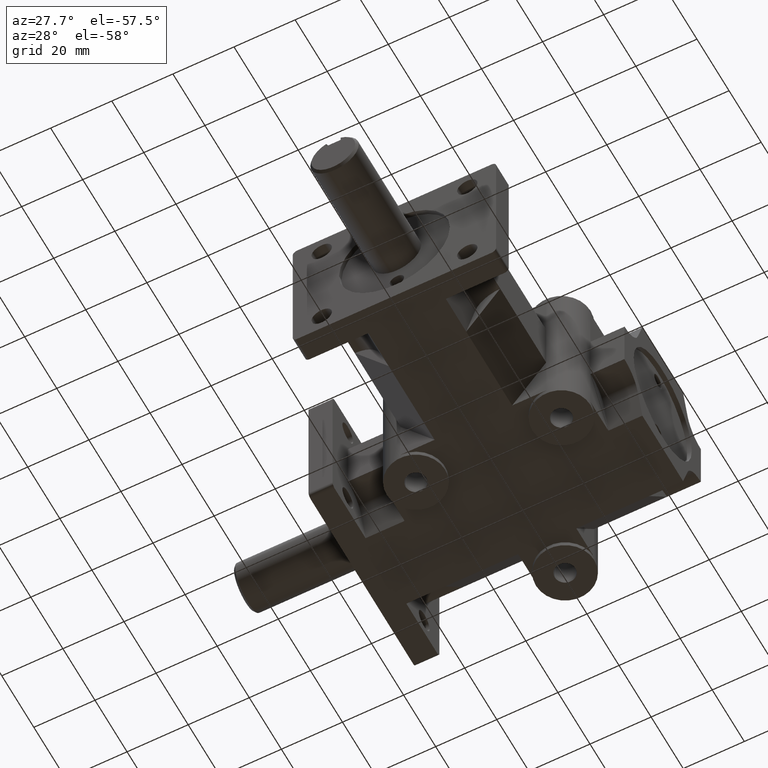
[diagram: clean part render]
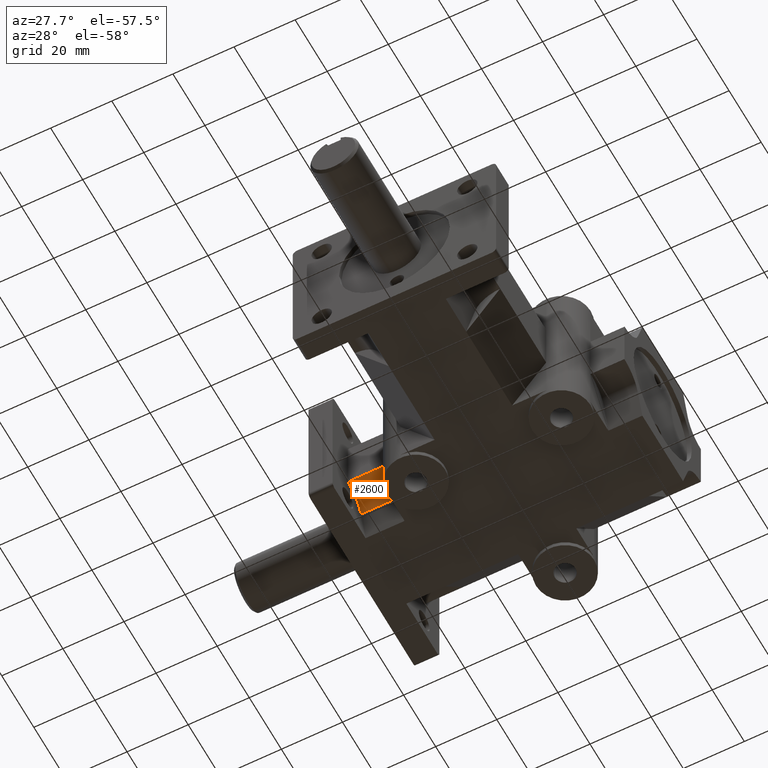
[diagram: same view with one face highlighted and labeled with its STEP entity id]
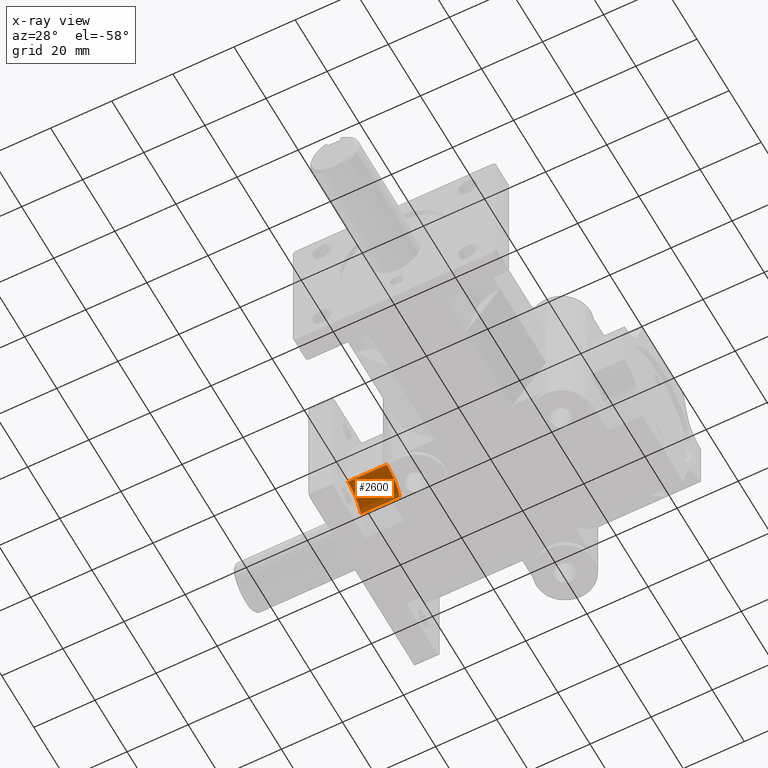
[diagram: x-ray of the same camera — body ghosted, the highlighted face saturated]
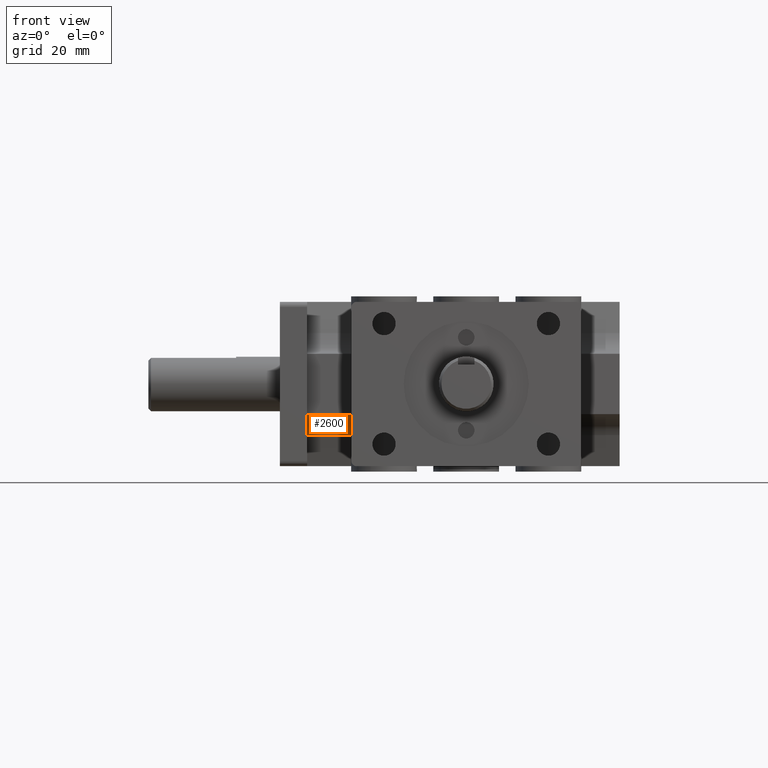
[diagram: same view with one face highlighted and labeled with its STEP entity id]
A machine part, auxiliary view. The second image highlights one B-rep face of the part: STEP entity #2600.
The next image is the same camera in x-ray: the body ghosted, the highlighted face saturated — about 0% of this face is hidden behind the body in this view.
A second angle (front view) of the same face is appended — the face is thin or edge-on in the first view.
In plain terms, the highlighted cylindrical surface (edge-blend (fillet) strip) has radius 8.636 mm, axis along (1, 0, 0).
Its self-contained STEP definition (entity closure, byte-faithful):
#207=FACE_OUTER_BOUND('',#381,.T.);
#381=EDGE_LOOP('',(#2018,#2019,#2020,#2021));
#610=LINE('',#4134,#875);
#611=LINE('',#4135,#876);
#875=VECTOR('',#3326,1.);
#876=VECTOR('',#3327,1.);
#1062=CIRCLE('',#2782,0.34);
#1087=CIRCLE('',#2829,0.34);
#1187=VERTEX_POINT('',#3911);
#1188=VERTEX_POINT('',#3913);
#1271=VERTEX_POINT('',#4128);
#1272=VERTEX_POINT('',#4130);
#1443=EDGE_CURVE('',#1187,#1188,#1062,.T.);
#1554=EDGE_CURVE('',#1271,#1272,#1087,.T.);
#1556=EDGE_CURVE('',#1188,#1271,#610,.T.);
#1557=EDGE_CURVE('',#1187,#1272,#611,.T.);
#2018=ORIENTED_EDGE('',*,*,#1556,.F.);
#2019=ORIENTED_EDGE('',*,*,#1443,.F.);
#2020=ORIENTED_EDGE('',*,*,#1557,.T.);
#2021=ORIENTED_EDGE('',*,*,#1554,.F.);
#2523=CYLINDRICAL_SURFACE('',#2830,0.34);
#2600=ADVANCED_FACE('',(#207),#2523,.F.);
#2782=AXIS2_PLACEMENT_3D('',#3914,#3141,#3142);
#2829=AXIS2_PLACEMENT_3D('',#4131,#3321,#3322);
#2830=AXIS2_PLACEMENT_3D('',#4133,#3324,#3325);
#3141=DIRECTION('center_axis',(1.,6.12303176911189E-17,0.));
#3142=DIRECTION('ref_axis',(6.12303176911189E-17,-1.,0.));
#3321=DIRECTION('center_axis',(-1.,-6.12303176911189E-17,0.));
#3322=DIRECTION('ref_axis',(6.12303176911189E-17,-1.,0.));
#3324=DIRECTION('center_axis',(1.,6.12303176911189E-17,0.));
#3325=DIRECTION('ref_axis',(6.12303176911189E-17,-1.,0.));
#3326=DIRECTION('',(1.,6.12303176911189E-17,0.));
#3327=DIRECTION('',(1.,6.12303176911189E-17,0.));
#3911=CARTESIAN_POINT('',(-1.815,2.63618685695402,-0.583448000330466));
#3913=CARTESIAN_POINT('',(-1.815,2.31527148121518,-0.347511295934889));
#3914=CARTESIAN_POINT('Origin',(-1.815,2.3125,-0.6875));
#4128=CARTESIAN_POINT('',(-1.315,2.31527148121518,-0.347511295934889));
#4130=CARTESIAN_POINT('',(-1.315,2.63618685695402,-0.583448000330466));
#4131=CARTESIAN_POINT('Origin',(-1.315,2.3125,-0.6875));
#4133=CARTESIAN_POINT('Origin',(-1.815,2.3125,-0.6875));
#4134=CARTESIAN_POINT('',(-1.815,2.31527148121518,-0.347511295934889));
#4135=CARTESIAN_POINT('',(-1.815,2.63618685695402,-0.583448000330466));